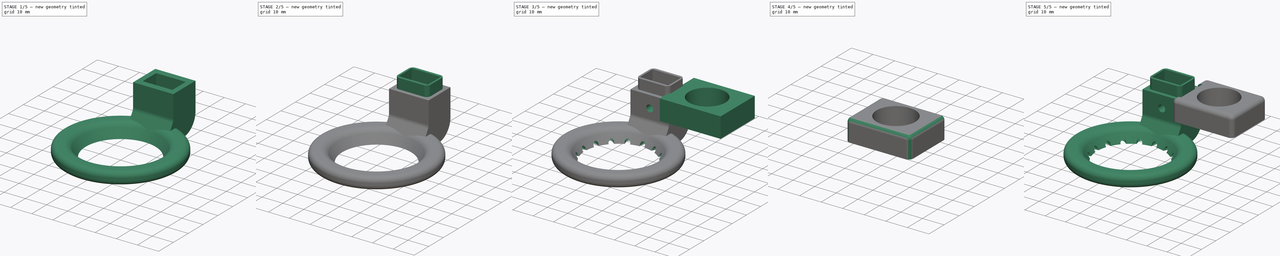
[diagram: build sequence overview — one tinted view per stage of 5, left to right]
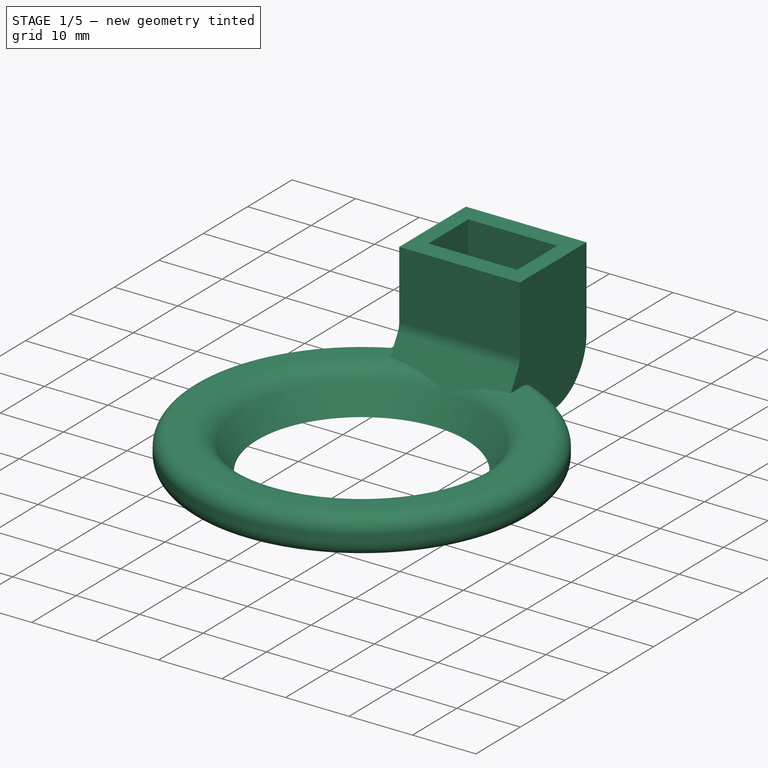
[diagram: stage 1 of 5 — iso view after this stage's code; geometry added in this stage tinted green]
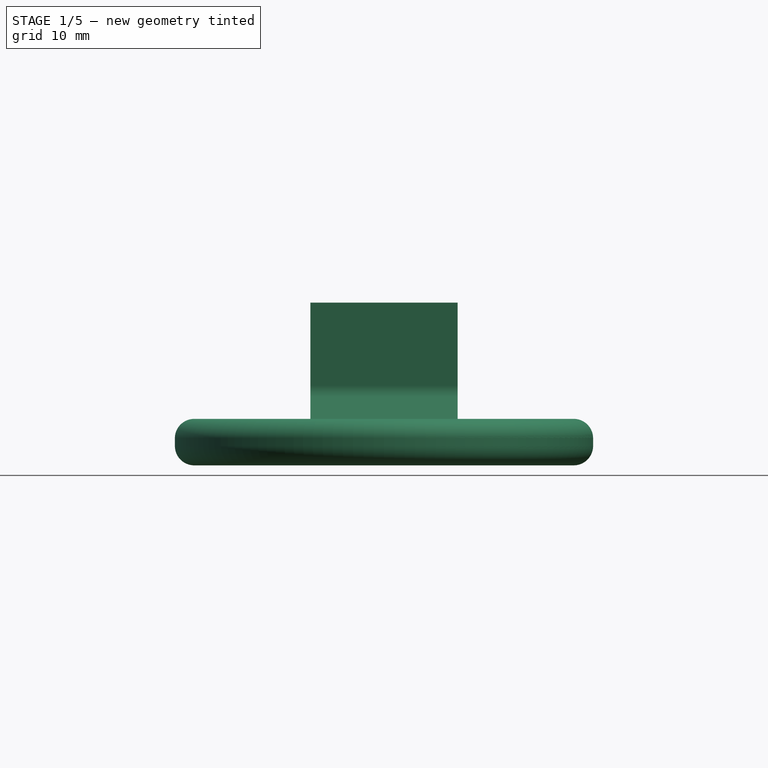
[diagram: stage 1 of 5 — front view after this stage's code; geometry added in this stage tinted green]
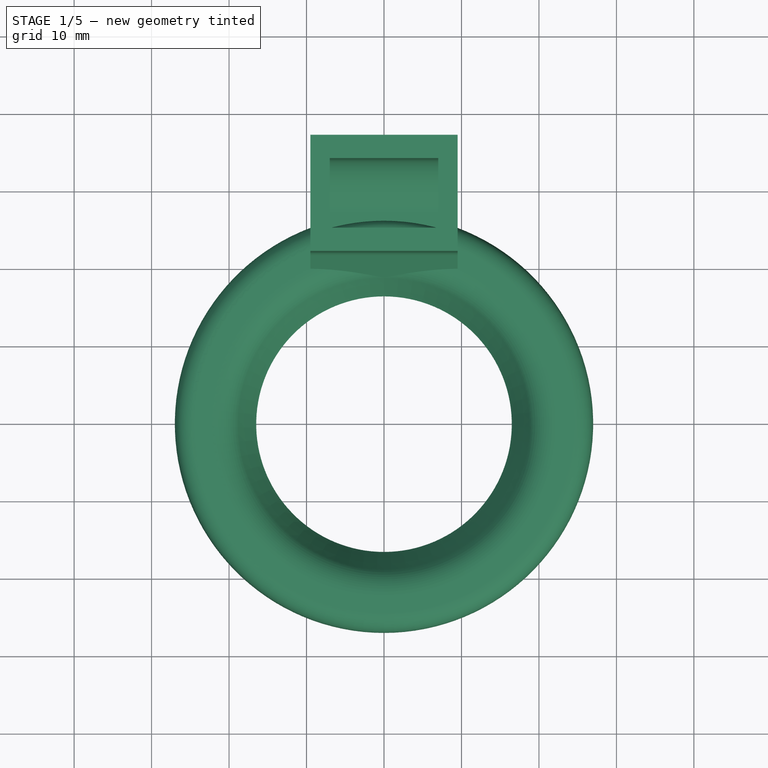
[diagram: stage 1 of 5 — top view after this stage's code; geometry added in this stage tinted green]
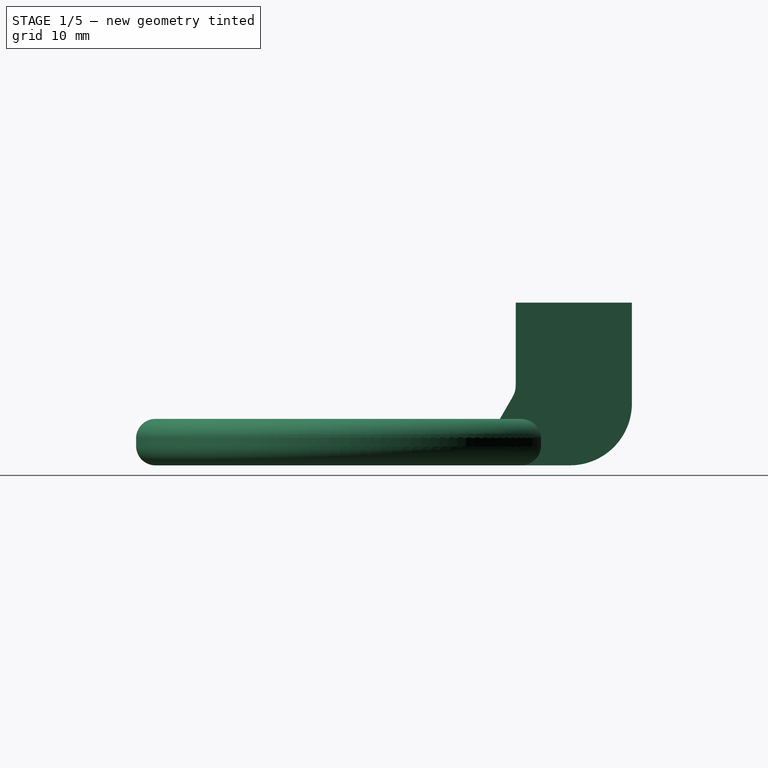
[diagram: stage 1 of 5 — right view after this stage's code; geometry added in this stage tinted green]
FCSTD DOCUMENT  (FreeCAD 0.14R3703 (Git))
Label: Tobera_pro
License: All rights reserved
LicenseURL: http://en.wikipedia.org/wiki/All_rights_reserved
objects: Sketcher::SketchObject×11, PartDesign::Pad×5, Part::Cut×5, PartDesign::Pocket×5, PartDesign::Fillet×5, Part::FeaturePython×2, PartDesign::Revolution×2, Part::MultiFuse×2, Part::Cone×1, Part::Box×1
note: 51 computed .brp shape members not serialized (recipe doc carries the construction recipe); baked Part::Feature solids carry a one-line shape summary decoded from their .brp

FEATURE [Sketcher::SketchObject] Sketch  label="Aussen"
  Placement = pos=(0,0,0) rot=(0.57735,0.57735,0.57735;2.0944rad)
  sketch-geometry (7):
    g0: LineSegment StartX=22 StartY=21 StartZ=0 EndX=22 EndY=10.3301 EndZ=0
    g1: LineSegment StartX=37 StartY=21 StartZ=0 EndX=37 EndY=8 EndZ=0
    g2: LineSegment StartX=22 StartY=21 StartZ=0 EndX=37 EndY=21 EndZ=0
    g3: ArcOfCircle CenterX=29 CenterY=8 CenterZ=0 NormalX=0 NormalY=0 NormalZ=1 Radius=8 StartAngle=4.71239 EndAngle=6.28319
    g4: LineSegment StartX=16.5 StartY=0 StartZ=0 EndX=21.5981 EndY=8.83012 EndZ=0
    g5: ArcOfCircle CenterX=19 CenterY=10.3301 CenterZ=0 NormalX=0 NormalY=0 NormalZ=1 Radius=3 StartAngle=5.75958 EndAngle=6.28318
    g6: LineSegment StartX=29 StartY=5e-12 StartZ=0 EndX=16.5 EndY=0 EndZ=0
  constraints (23):
    c: Vertical(g0)
    c: DistanceY(g-1,g0) = 21
    c: DistanceX(g-1,g0) = 22
    c: Vertical(g1)
    c: Coincident(g2,g0)
    c: Horizontal(g2)
    c: Coincident(g2,g1)
    c: Distance(g2) = 15
    c: Coincident(g3,g1)
    c: Tangent(g3,g1)
    c: Tangent(g3,g-1)
    c: PointOnObject(g3,g-1)
    c: PointOnObject(g4,g-1)
    c: Angle(g4,g-1) = 2.0944
    c: DistanceX(g-1,g4) = 16.5
    c: Coincident(g5,g4)
    c: Coincident(g5,g0)
    c: Tangent(g5,g0)
    c: Tangent(g5,g4)
    c: Radius(g5) = 3
    c: Radius(g3) = 8
    c: Coincident(g6,g3)
    c: Coincident(g6,g4)
FEATURE [PartDesign::Pad] Pad
  Length = 19
  Length2 = 100
  Midplane = true
  Placement = pos=(0,0,0) rot=(0.57735,0.57735,0.57735;2.0944rad)
  Sketch = -> Sketch
  Type = 0
FEATURE [Sketcher::SketchObject] Sketch002  label="Innen"
  Placement = pos=(0,0,0) rot=(0.57735,0.57735,0.57735;2.0944rad)
  sketch-geometry (7):
    g0: LineSegment StartX=20.8 StartY=1 StartZ=0 EndX=27 EndY=1 EndZ=0
    g1: LineSegment StartX=34 StartY=8 StartZ=0 EndX=34 EndY=22 EndZ=0
    g2: LineSegment StartX=25 StartY=22 StartZ=0 EndX=25 EndY=6.99699 EndZ=0
    g3: ArcOfCircle CenterX=27 CenterY=8 CenterZ=0 NormalX=0 NormalY=0 NormalZ=1 Radius=7 StartAngle=4.71239 EndAngle=6.28319
    g4: ArcOfCircle CenterX=23 CenterY=6.99701 CenterZ=0 NormalX=0 NormalY=0 NormalZ=1 Radius=2 StartAngle=4.76711 EndAngle=6.28318
    g5: LineSegment StartX=23.1094 StartY=5 StartZ=0 EndX=20.8 EndY=1 EndZ=0
    g6: LineSegment StartX=34 StartY=22 StartZ=0 EndX=25 EndY=22 EndZ=0
  constraints (23):
    c: Horizontal(g0)
    c: Vertical(g1)
    c: Vertical(g2)
    c: DistanceX(g-1,g2) = 25
    c: DistanceX(g2,g1) = 9
    c: Coincident(g3,g1)
    c: DistanceY(g-1,g0) = 1
    c: Coincident(g3,g0)
    c: Radius(g3) = 7
    c: Coincident(g4,g2)
    c: Tangent(g4,g2)
    c: Radius(g4) = 2
    c: Coincident(g5,g0)
    c: DistanceY(g5,g0) = -4
    c: Distance(g1) = 14
    c: Coincident(g6,g1)
    c: Horizontal(g6)
    c: Coincident(g2,g6)
    c: DistanceX(g0) = 6.2
    c: Tangent(g3,g1)
    c: Tangent(g0,g3)
    c: Angle(g0,g5) = 1.0472
    c: Coincident(g4,g5)
FEATURE [PartDesign::Pad] Pad001
  Length = 14
  Length2 = 100
  Midplane = true
  Placement = pos=(0,0,0) rot=(0.57735,0.57735,0.57735;2.0944rad)
  Sketch = -> Sketch002
  Type = 0
FEATURE [PartDesign::Revolution] Revolution
  Angle = 360
  Axis = (0,0,1)
  Base = (0,0,0)
  Placement = pos=(0,0,0) rot=(0.57735,0.57735,0.57735;2.0944rad)
  ReferenceAxis = -> Sketch004 [V_Axis]
  Reversed = true
  Sketch = -> Sketch004
FEATURE [PartDesign::Revolution] Revolution001
  Angle = 360
  Axis = (0,0,1)
  Base = (0,0,0)
  Placement = pos=(0,0,0) rot=(0.57735,0.57735,0.57735;2.0944rad)
  ReferenceAxis = -> Sketch003 [V_Axis]
  Reversed = true
  Sketch = -> Sketch003
FEATURE [Part::MultiFuse] Fusion
  Shapes = -> [Pad,Revolution]
FEATURE [Part::Cut] Cut
  Base = -> Fusion
  Tool = -> Pad001
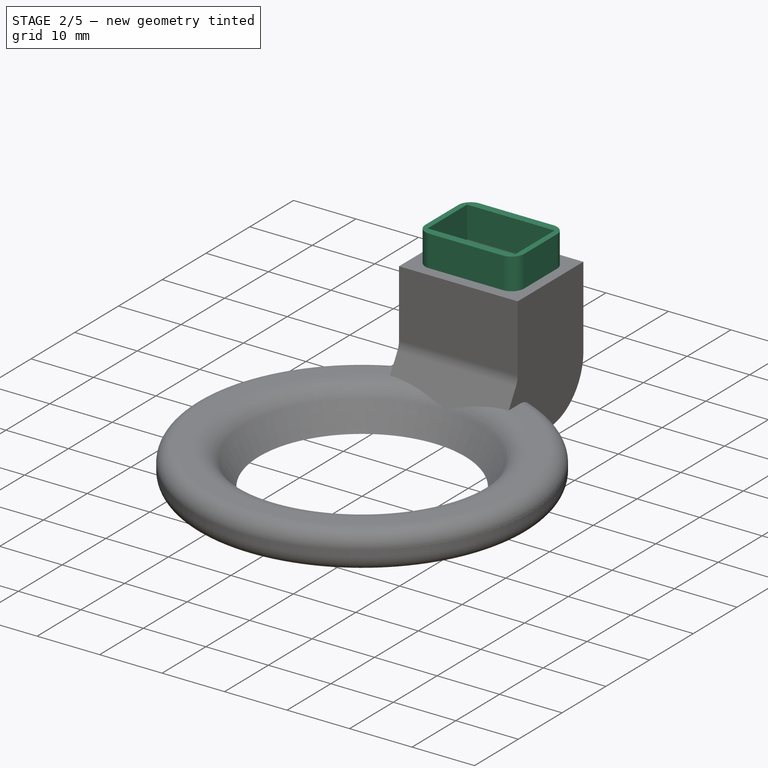
[diagram: stage 2 of 5 — iso view after this stage's code; geometry added in this stage tinted green]
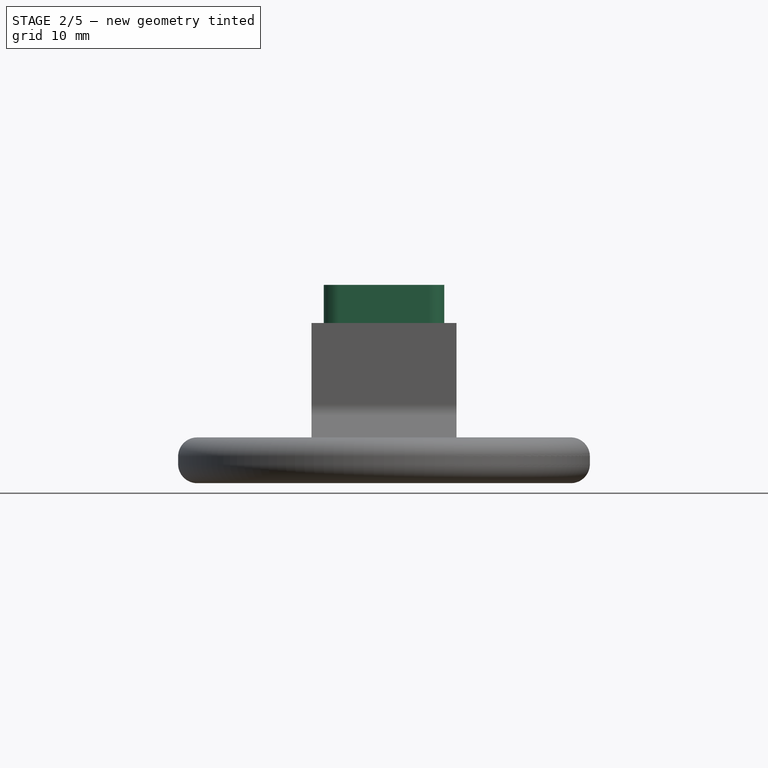
[diagram: stage 2 of 5 — front view after this stage's code; geometry added in this stage tinted green]
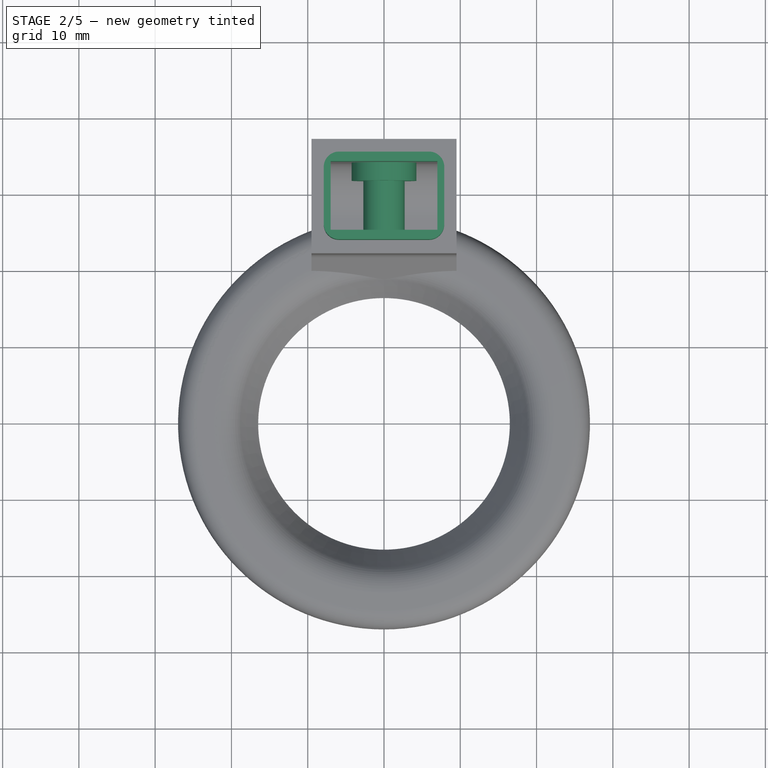
[diagram: stage 2 of 5 — top view after this stage's code; geometry added in this stage tinted green]
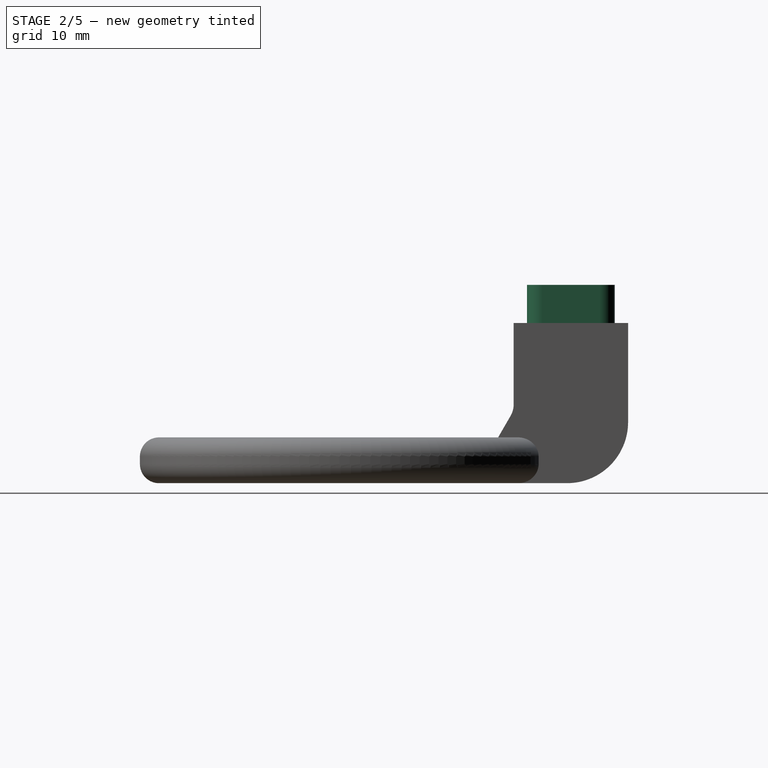
[diagram: stage 2 of 5 — right view after this stage's code; geometry added in this stage tinted green]
FEATURE [Part::Cut] Cut001
  Base = -> Cut
  Tool = -> Revolution001
FEATURE [Sketcher::SketchObject] Sketch012
  Placement = pos=(0,34,0) rot=(1,0,0;1.5708rad)
  Support = -> Cut001 [Face9]
  sketch-geometry (1):
    g0: Circle CenterX=0 CenterY=15 CenterZ=0 NormalX=0 NormalY=0 NormalZ=1 Radius=4.25
  constraints (3):
    c: PointOnObject(g0,g-2)
    c: Radius(g0) = 4.25
    c: DistanceY(g-1,g0) = 15
FEATURE [PartDesign::Pad] Pad003
  Length = 2.4
  Length2 = 100
  Sketch = -> Sketch012
  Type = 0
FEATURE [Sketcher::SketchObject] Sketch009
  Placement = pos=(0,0,21) rot=(0,0,1;0rad)
  Support = -> Pad003 [Face6]
  sketch-geometry (13):
    g0: LineSegment StartX=-7.9 StartY=25.75 StartZ=0 EndX=-7.9 EndY=33.25 EndZ=0
    g1: LineSegment StartX=-5.9 StartY=23.75 StartZ=0 EndX=5.9 EndY=23.75 EndZ=0
    g2: LineSegment StartX=-5.9 StartY=35.25 StartZ=0 EndX=5.9 EndY=35.25 EndZ=0
    g3: LineSegment StartX=-7 StartY=34 StartZ=0 EndX=7 EndY=34 EndZ=0
    g4: LineSegment StartX=7 StartY=34 StartZ=0 EndX=7 EndY=25 EndZ=0
    g5: LineSegment StartX=7 StartY=25 StartZ=0 EndX=-7 EndY=25 EndZ=0
    g6: LineSegment StartX=-7 StartY=25 StartZ=0 EndX=-7 EndY=34 EndZ=0
    g7: ArcOfCircle CenterX=-5.9 CenterY=33.25 CenterZ=0 NormalX=0 NormalY=0 NormalZ=1 Radius=2 StartAngle=1.5708 EndAngle=3.14159
    g8: ArcOfCircle CenterX=5.9 CenterY=33.25 CenterZ=0 NormalX=0 NormalY=0 NormalZ=1 Radius=2 StartAngle=6.28319 EndAngle=7.85398
    g9: ArcOfCircle CenterX=-5.9 CenterY=25.75 CenterZ=0 NormalX=0 NormalY=0 NormalZ=1 Radius=2 StartAngle=3.14159 EndAngle=4.71239
    g10: GeomPoint [constr] X=7.9 Y=33.25 Z=0
    g11: LineSegment StartX=7.9 StartY=33.25 StartZ=0 EndX=7.9 EndY=25.75 EndZ=0
    g12: ArcOfCircle CenterX=5.9 CenterY=25.75 CenterZ=0 NormalX=0 NormalY=0 NormalZ=1 Radius=2 StartAngle=4.71239 EndAngle=6.28319
  constraints (41):
    c: Vertical(g0)
    c: Horizontal(g1)
    c: Horizontal(g2)
    c: Coincident(g3,g4)
    c: Coincident(g4,g5)
    c: Coincident(g5,g6)
    c: Coincident(g6,g3)
    c: Horizontal(g3)
    c: Horizontal(g5)
    c: Vertical(g4)
    c: Vertical(g6)
    c: Coincident(g7,g2)
    c: Coincident(g7,g0)
    c: Tangent(g7,g0)
    c: Tangent(g7,g2)
    c: Radius(g7) = 2
    c: Coincident(g8,g2)
    c: Tangent(g8,g2)
    c: Equal(g8,g7)
    c: Coincident(g9,g0)
    c: Coincident(g9,g1)
    c: Tangent(g9,g1)
    c: Tangent(g9,g0)
    c: Radius(g9) = 2
    c: Coincident(g10,g8)
    c: Coincident(g11,g8)
    c: Vertical(g11)
    c: Coincident(g12,g1)
    c: Coincident(g12,g11)
    c: Tangent(g12,g11)
    c: Tangent(g12,g1)
    c: Equal(g12,g8)
    c: DistanceY(g-1,g1) = 23.75
    c: DistanceY(g1,g5) = 1.25
    c: DistanceY(g3,g2) = 1.25
    c: Tangent(g8,g11)
    c: DistanceX(g4,g5) = -14
    c: DistanceY(g4,g3) = 9
    c: DistanceX(g0,g3) = 0.9
    c: DistanceX(g3,g8) = 0.9
    c: Symmetric(g0,g8,g-2)
FEATURE [PartDesign::Pad] Pad004
  Length = 5
  Length2 = 100
  Sketch = -> Sketch009
  Type = 0
FEATURE [Sketcher::SketchObject] Sketch013
  Placement = pos=(0,31.6,0) rot=(1,0,0;1.5708rad)
  Support = -> Pad004 [Face1]
  sketch-geometry (1):
    g0: Circle CenterX=0 CenterY=15 CenterZ=0 NormalX=0 NormalY=0 NormalZ=1 Radius=2.7
  constraints (3):
    c: PointOnObject(g0,g-2)
    c: Radius(g0) = 2.7
    c: DistanceY(g-1,g0) = 15
FEATURE [PartDesign::Pad] Pad005
  Length = 10
  Length2 = 100
  Sketch = -> Sketch013
  Type = 2
FEATURE [Sketcher::SketchObject] Sketch014
  Placement = pos=(0,37,0) rot=(0,0.707107,0.707107;3.14159rad)
  Support = -> Pad005 [Face37]
  sketch-geometry (1):
    g0: Circle CenterX=0 CenterY=15 CenterZ=0 NormalX=0 NormalY=0 NormalZ=1 Radius=3.25
  constraints (3):
    c: PointOnObject(g0,g-2)
    c: Radius(g0) = 3.25
    c: DistanceY(g-1,g0) = 15
FEATURE [PartDesign::Pocket] Pocket
  Length = 3.4
  Sketch = -> Sketch014
  Type = 0
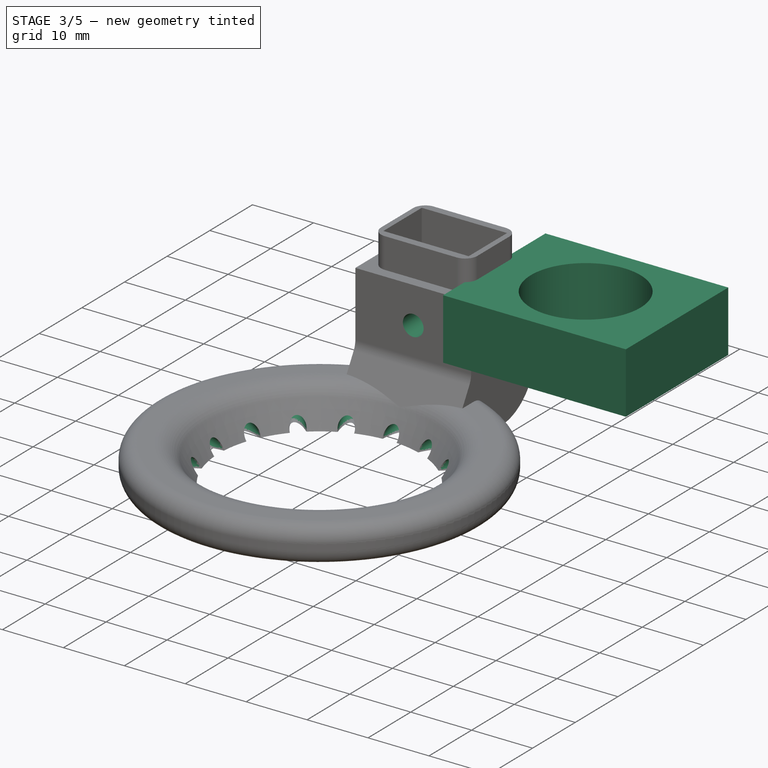
[diagram: stage 3 of 5 — iso view after this stage's code; geometry added in this stage tinted green]
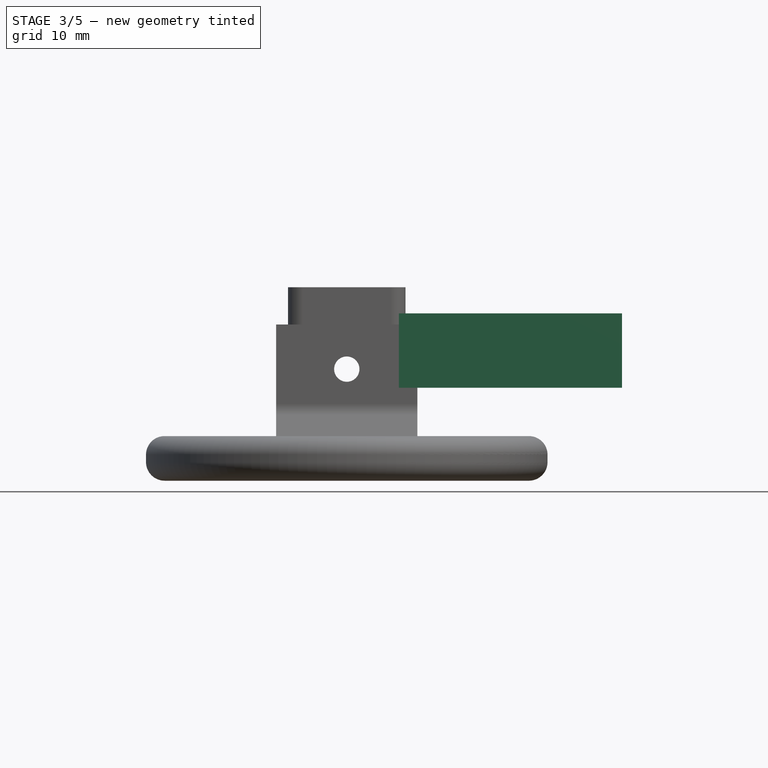
[diagram: stage 3 of 5 — front view after this stage's code; geometry added in this stage tinted green]
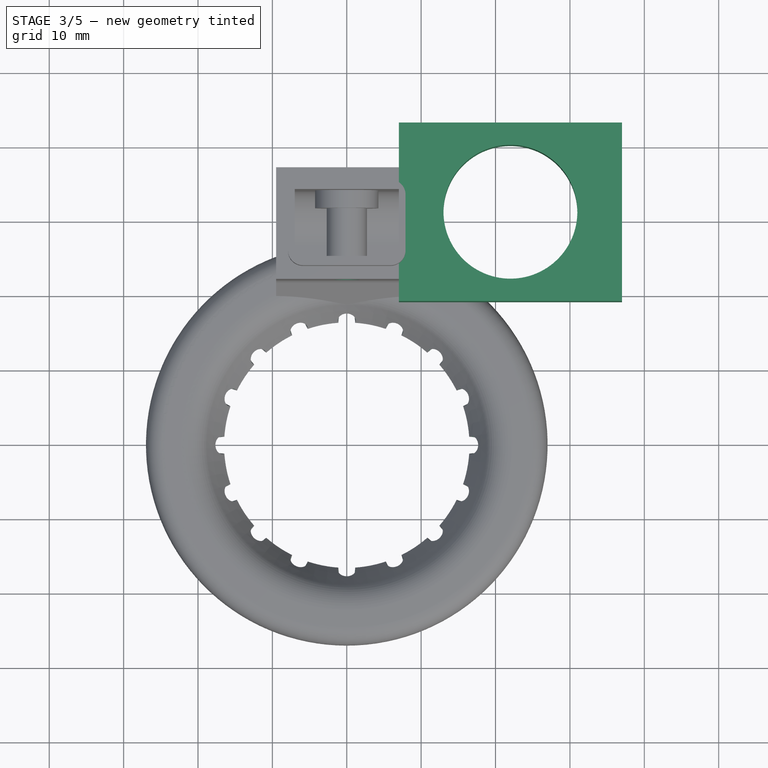
[diagram: stage 3 of 5 — top view after this stage's code; geometry added in this stage tinted green]
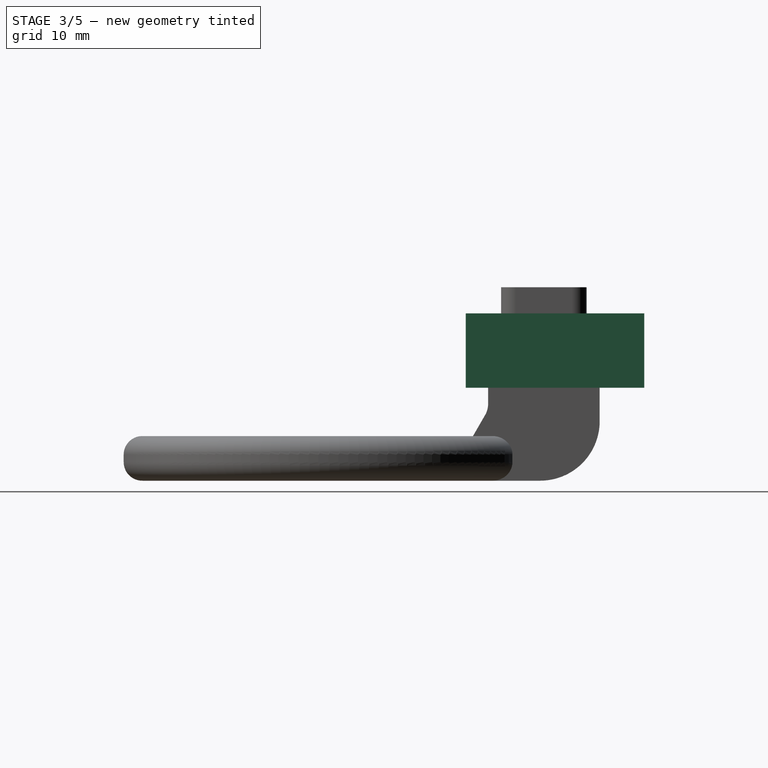
[diagram: stage 3 of 5 — right view after this stage's code; geometry added in this stage tinted green]
FEATURE [Sketcher::SketchObject] Sketch003  label="RingInnen"
  Placement = pos=(0,0,0) rot=(0.57735,0.57735,0.57735;2.0944rad)
  sketch-geometry (7):
    g0: LineSegment StartX=20 StartY=1 StartZ=0 EndX=24.7 EndY=1 EndZ=0
    g1: LineSegment StartX=21.8764 StartY=4.25 StartZ=0 EndX=20 EndY=1 EndZ=0
    g2: LineSegment StartX=23.1754 StartY=5 StartZ=0 EndX=24.7 EndY=5 EndZ=0
    g3: ArcOfCircle CenterX=24.7 CenterY=3.5 CenterZ=0 NormalX=0 NormalY=0 NormalZ=1 Radius=1.5 StartAngle=-3.02e-10 EndAngle=1.5708
    g4: ArcOfCircle CenterX=23.1754 CenterY=3.5 CenterZ=0 NormalX=0 NormalY=0 NormalZ=1 Radius=1.5 StartAngle=1.5708 EndAngle=2.61799
    g5: LineSegment StartX=26.2 StartY=3.5 StartZ=0 EndX=26.2 EndY=2.5 EndZ=0
    g6: ArcOfCircle CenterX=24.7 CenterY=2.5 CenterZ=0 NormalX=0 NormalY=0 NormalZ=1 Radius=1.5 StartAngle=4.71239 EndAngle=6.28319
  constraints (23):
    c: Horizontal(g0)
    c: DistanceY(g-1,g0) = 1
    c: Coincident(g1,g0)
    c: Angle(g0,g1) = 1.0472
    c: DistanceX(g-1,g0) = 20
    c: Horizontal(g2)
    c: Coincident(g3,g2)
    c: Tangent(g3,g2)
    c: Radius(g3) = 1.5
    c: DistanceY(g2,g0) = -4
    c: Coincident(g4,g2)
    c: Coincident(g4,g1)
    c: Tangent(g1,g4)
    c: Tangent(g4,g2)
    c: Radius(g4) = 1.5
    c: DistanceX(g0,g3) = 6.2
    c: Coincident(g5,g3)
    c: Vertical(g5)
    c: Coincident(g6,g0)
    c: Coincident(g6,g5)
    c: Tangent(g6,g5)
    c: Tangent(g6,g0)
    c: Radius(g6) = 1.5
FEATURE [Sketcher::SketchObject] Sketch004  label="RingAussen"
  Placement = pos=(0,0,0) rot=(0.57735,0.57735,0.57735;2.0944rad)
  sketch-geometry (7):
    g0: LineSegment StartX=16.4957 StartY=0 StartZ=0 EndX=24.4957 EndY=0 EndZ=0
    g1: LineSegment StartX=18.8051 StartY=4.00002 StartZ=0 EndX=16.4957 EndY=0 EndZ=0
    g2: LineSegment StartX=24.4957 StartY=6 StartZ=0 EndX=22.2692 EndY=6 EndZ=0
    g3: ArcOfCircle CenterX=22.2692 CenterY=2 CenterZ=0 NormalX=0 NormalY=0 NormalZ=1 Radius=4 StartAngle=1.5708 EndAngle=2.61799
    g4: ArcOfCircle CenterX=24.4957 CenterY=3.5 CenterZ=0 NormalX=0 NormalY=0 NormalZ=1 Radius=2.5 StartAngle=6.28318 EndAngle=7.85398
    g5: LineSegment StartX=26.9957 StartY=3.5 StartZ=0 EndX=26.9957 EndY=2.5 EndZ=0
    g6: ArcOfCircle CenterX=24.4957 CenterY=2.5 CenterZ=0 NormalX=0 NormalY=0 NormalZ=1 Radius=2.5 StartAngle=4.71239 EndAngle=6.28319
  constraints (24):
    c: Horizontal(g0)
    c: DistanceY(g-1,g0) = 0
    c: Coincident(g1,g0)
    c: Angle(g0,g1) = 1.0472
    c: DistanceX(g-1,g0) = 16.4957
    c: Horizontal(g2)
    c: DistanceY(g2,g0) = -6
    c: Coincident(g3,g2)
    c: Coincident(g3,g1)
    c: Tangent(g1,g3)
    c: Tangent(g2,g3)
    c: Radius(g3) = 4
    c: Coincident(g4,g2)
    c: Tangent(g4,g2)
    c: Radius(g4) = 2.5
    c: Coincident(g5,g4)
    c: Vertical(g5)
    c: DistanceX(g0,g5) = 10.5
    c: Coincident(g6,g0)
    c: Coincident(g6,g5)
    c: Tangent(g6,g5)
    c: Tangent(g6,g0)
    c: Radius(g6) = 2.5
    c: Tangent(g4,g5)
FEATURE [Part::Cone] Cone
  Angle = 360
  Height = 7
  Placement = pos=(0,16,0.3) rot=(-1,0,0;1.309rad)
  Radius1 = 1.2
  Radius2 = 1.3
FEATURE [Part::Box] Box  label="Cubo"
  Height = 10
  Length = 30
  Placement = pos=(7,19,12.5) rot=(0,0,1;0rad)
  Width = 24
FEATURE [Sketcher::SketchObject] Sketch016
  ExternalGeometry = -> [Box]
  Placement = pos=(7,19,22.5) rot=(0,0,1;0rad)
  Support = -> Box [Face6]
  sketch-geometry (5):
    g0: LineSegment [constr] StartX=0 StartY=12 StartZ=0 EndX=15 EndY=12 EndZ=0
    g1: LineSegment [constr] StartX=15 StartY=12 StartZ=0 EndX=15 EndY=0 EndZ=0
    g2: LineSegment [constr] StartX=15 StartY=0 StartZ=0 EndX=0 EndY=0 EndZ=0
    g3: LineSegment [constr] StartX=0 StartY=0 StartZ=0 EndX=0 EndY=12 EndZ=0
    g4: Circle CenterX=15 CenterY=12 CenterZ=0 NormalX=0 NormalY=0 NormalZ=1 Radius=9
  constraints (13):
    c: Coincident(g0,g1)
    c: Coincident(g1,g2)
    c: Coincident(g2,g3)
    c: Coincident(g3,g0)
    c: Horizontal(g0)
    c: Horizontal(g2)
    c: Vertical(g1)
    c: Vertical(g3)
    c: Coincident(g2,g-1)
    c: DistanceY(g1) = -12
    c: DistanceX(g0) = 15
    c: Radius(g4) = 9
    c: Coincident(g4,g0)
FEATURE [PartDesign::Pocket] Pocket002
  Length = 10
  Placement = pos=(7,19,12.5) rot=(0,0,1;0rad)
  Sketch = -> Sketch016
  Type = 0
FEATURE [Part::FeaturePython] Array001  # Draft array (typed FeaturePython)
  Angle = 360
  ArrayType = 1
  Axis = (0,0,1)
  Base = -> Cone
  Center = (0,0,0)
  Fuse = false
  IntervalAxis = (0,0,0)
  IntervalX = (1,0,0)
  IntervalY = (0,1,0)
  IntervalZ = (0,0,0)
  NumberPolar = 16
  NumberX = 2
  NumberY = 2
  NumberZ = 1
FEATURE [PartDesign::Pocket] Pocket003
  Length = 5
  Sketch = -> Sketch015
  Type = 1
FEATURE [Part::Cut] Cut003  label="Aux-Tobera"
  Base = -> Pocket003
  Tool = -> Array001
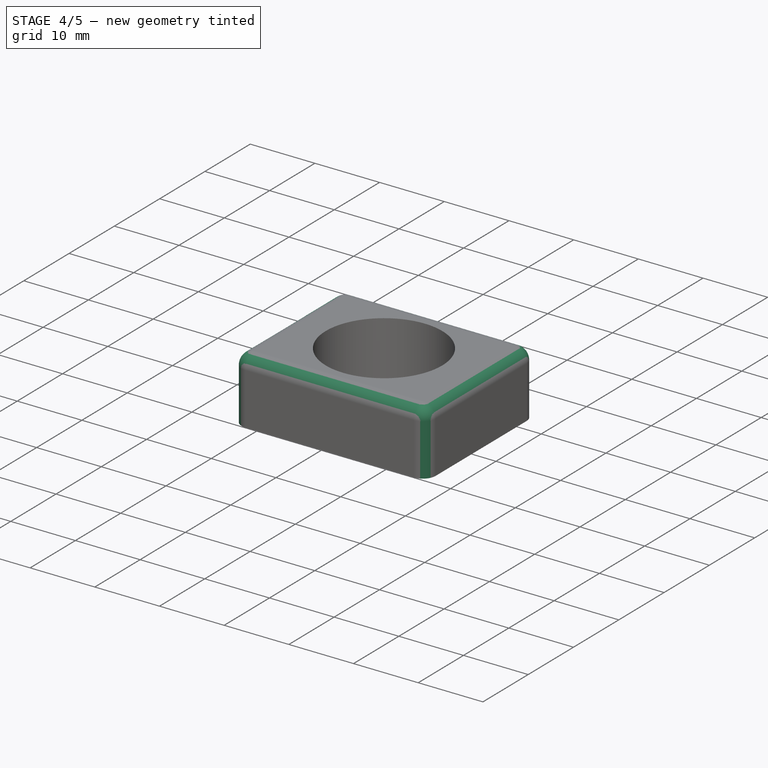
[diagram: stage 4 of 5 — iso view after this stage's code; geometry added in this stage tinted green]
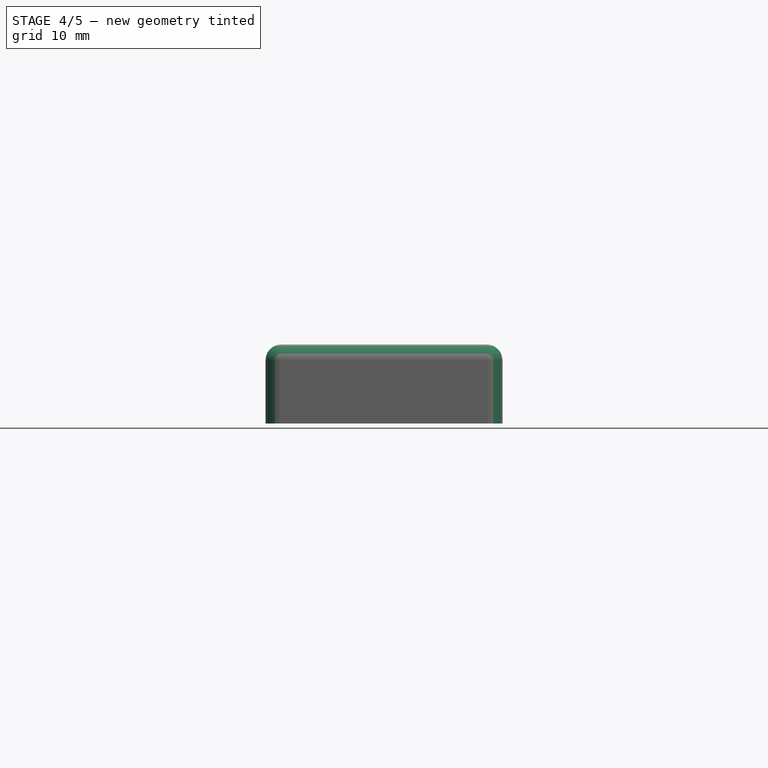
[diagram: stage 4 of 5 — front view after this stage's code; geometry added in this stage tinted green]
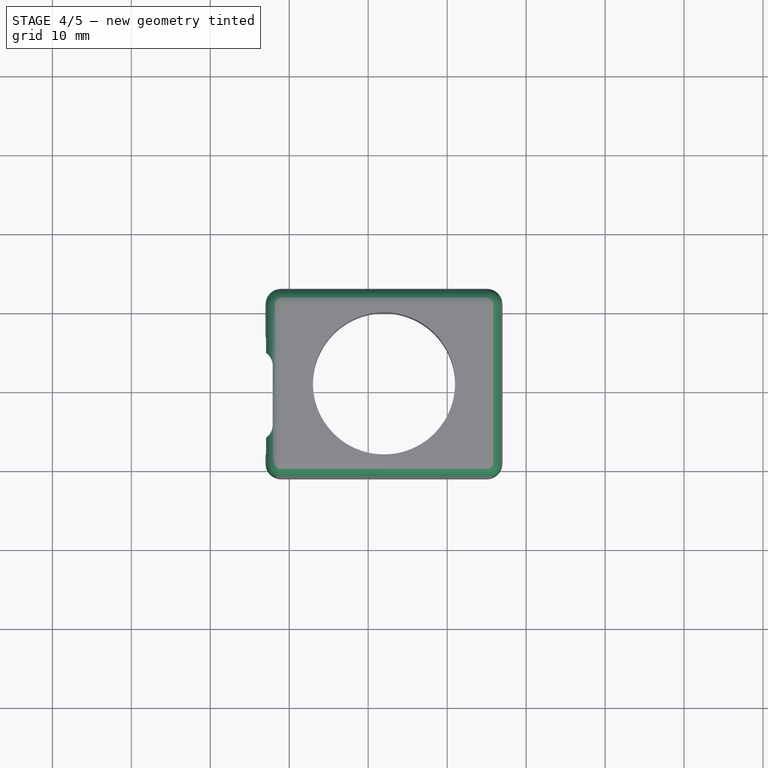
[diagram: stage 4 of 5 — top view after this stage's code; geometry added in this stage tinted green]
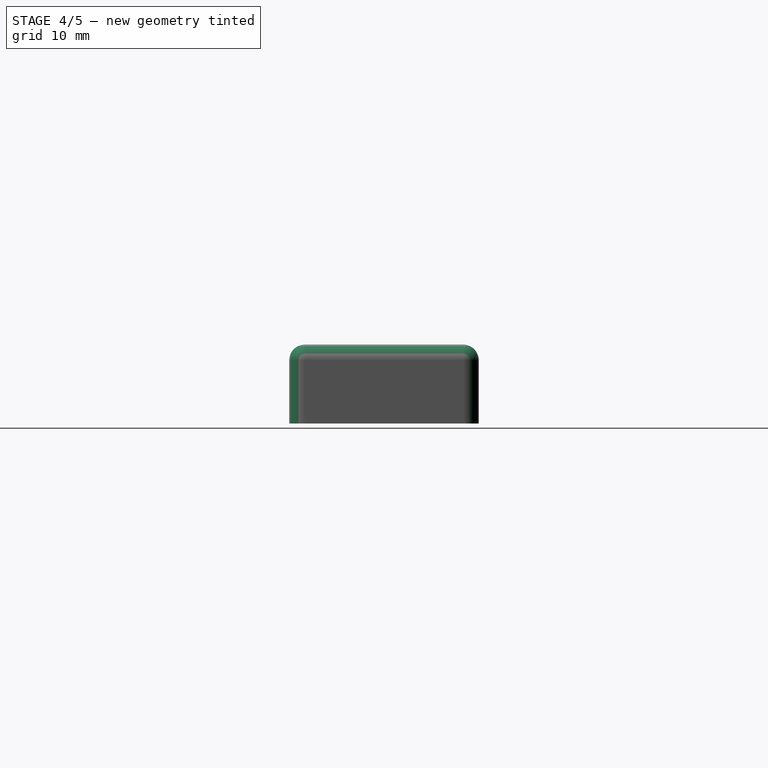
[diagram: stage 4 of 5 — right view after this stage's code; geometry added in this stage tinted green]
FEATURE [PartDesign::Fillet] Fillet
  Base = -> Pocket002 [Edge7]
  Placement = pos=(7,19,12.5) rot=(0,0,1;0rad)
  Radius = 2
FEATURE [PartDesign::Fillet] Fillet001
  Base = -> Fillet [Edge14]
  Placement = pos=(7,19,12.5) rot=(0,0,1;0rad)
  Radius = 2
FEATURE [PartDesign::Fillet] Fillet002
  Base = -> Fillet001 [Edge17]
  Placement = pos=(7,19,12.5) rot=(0,0,1;0rad)
  Radius = 2
FEATURE [PartDesign::Fillet] Fillet003  label="Soporte"
  Base = -> Fillet002 [Edge14]
  Placement = pos=(7,19,12.5) rot=(0,0,1;0rad)
  Radius = 2
FEATURE [Part::Cut] Cut004  label="New-Soporte"
  Base = -> Fillet003
  Tool = -> Cut003
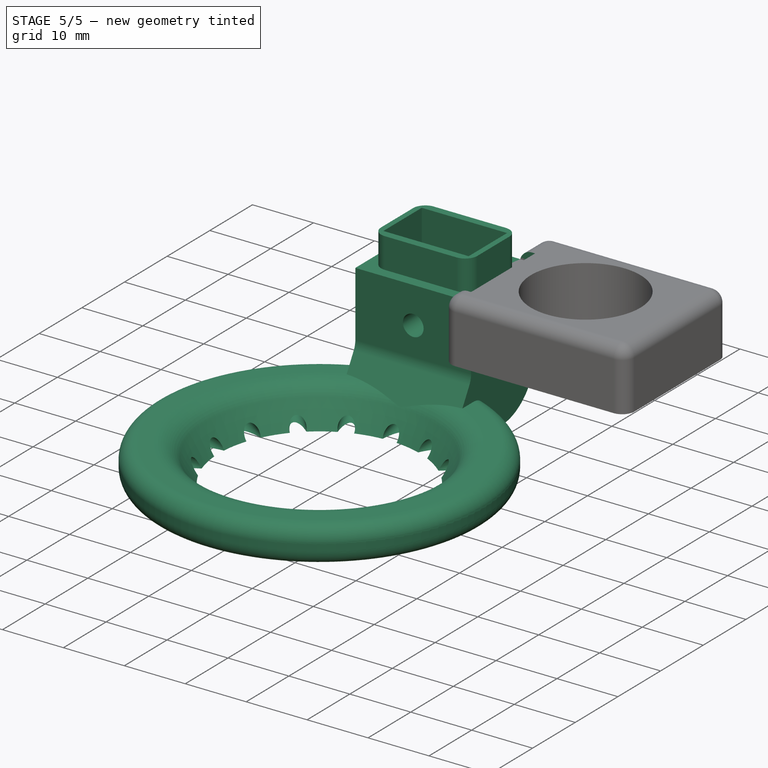
[diagram: stage 5 of 5 — iso view after this stage's code; geometry added in this stage tinted green]
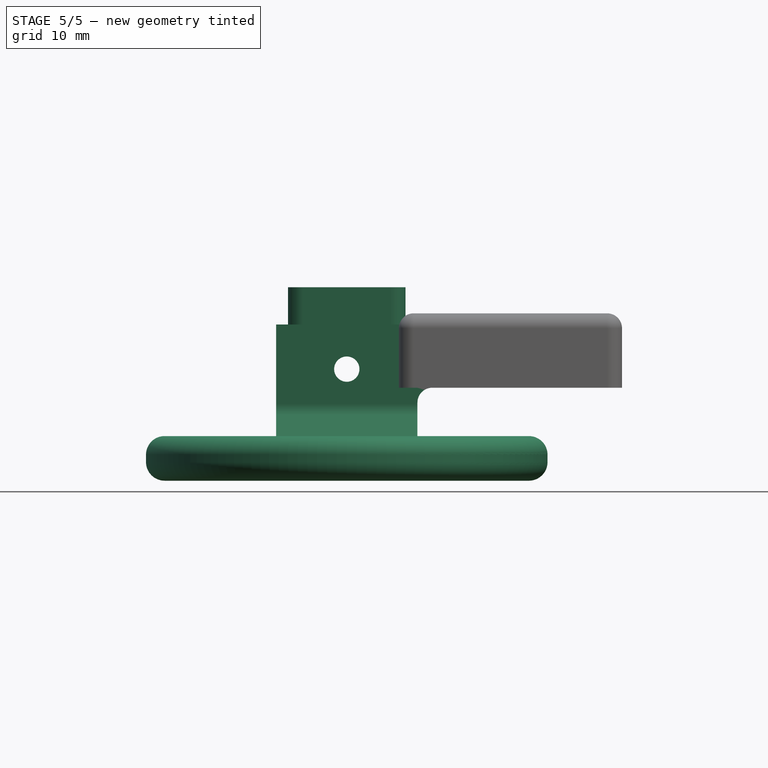
[diagram: stage 5 of 5 — front view after this stage's code; geometry added in this stage tinted green]
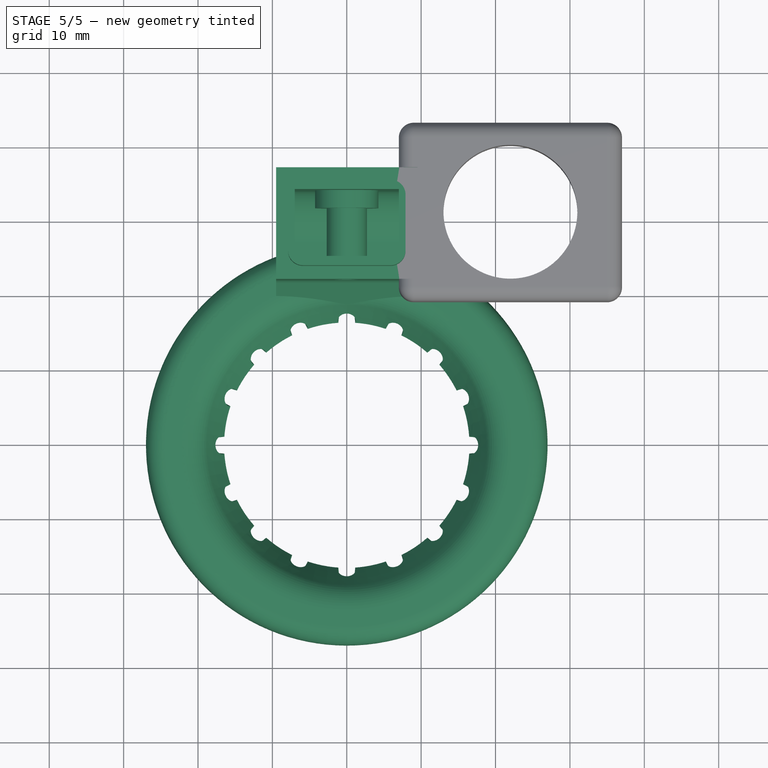
[diagram: stage 5 of 5 — top view after this stage's code; geometry added in this stage tinted green]
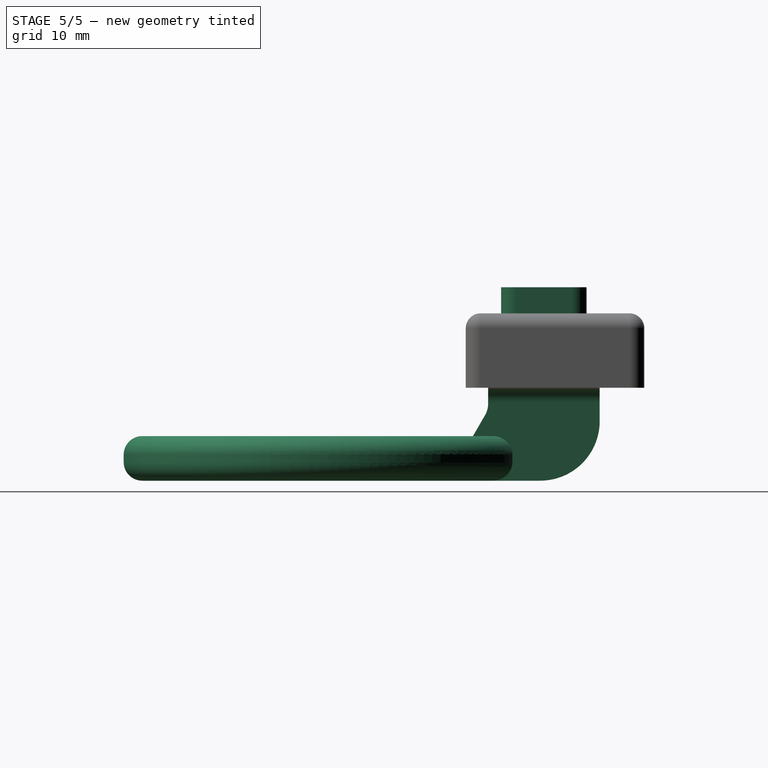
[diagram: stage 5 of 5 — right view after this stage's code; geometry added in this stage tinted green]
FEATURE [Part::FeaturePython] Array  # Draft array (typed FeaturePython)
  Angle = 360
  ArrayType = 1
  Axis = (0,0,1)
  Base = -> Cone
  Center = (0,0,0)
  Fuse = false
  IntervalAxis = (0,0,0)
  IntervalX = (1,0,0)
  IntervalY = (0,1,0)
  IntervalZ = (0,0,0)
  NumberPolar = 16
  NumberX = 2
  NumberY = 2
  NumberZ = 1
FEATURE [Sketcher::SketchObject] Sketch015
  Placement = pos=(0,33.6,0) rot=(0,0.707107,0.707107;3.14159rad)
  Support = -> Pocket [Face51]
  sketch-geometry (1):
    g0: Circle CenterX=0 CenterY=15 CenterZ=0 NormalX=0 NormalY=0 NormalZ=1 Radius=1.7
  constraints (3):
    c: PointOnObject(g0,g-2)
    c: Radius(g0) = 1.7
    c: DistanceY(g-1,g0) = 15
FEATURE [PartDesign::Pocket] Pocket001
  Length = 5
  Sketch = -> Sketch015
  Type = 1
FEATURE [Part::Cut] Cut002  label="Tobera"
  Base = -> Pocket001
  Tool = -> Array
FEATURE [Sketcher::SketchObject] Sketch017
  ExternalGeometry = -> [Cut004]
  Placement = pos=(0,0,21) rot=(1,0,0;3.14159rad)
  Support = -> Cut004 [Face12]
  sketch-geometry (4):
    g0: LineSegment StartX=9.5 StartY=-37 StartZ=0 EndX=7.06351 EndY=-37 EndZ=0
    g1: LineSegment StartX=7.06351 StartY=-37 StartZ=0 EndX=7.06351 EndY=-22 EndZ=0
    g2: LineSegment StartX=7.06351 StartY=-22 StartZ=0 EndX=9.5 EndY=-22 EndZ=0
    g3: LineSegment StartX=9.5 StartY=-22 StartZ=0 EndX=9.5 EndY=-37 EndZ=0
  constraints (11):
    c: Coincident(g0,g1)
    c: Coincident(g1,g2)
    c: Coincident(g2,g3)
    c: Coincident(g3,g0)
    c: Horizontal(g0)
    c: Horizontal(g2)
    c: Vertical(g1)
    c: Vertical(g3)
    c: Coincident(g0,g-5)
    c: Equal(g2,g-4)
    c: Equal(g1,g-3)
FEATURE [PartDesign::Pocket] Pocket004
  Length = 5
  Sketch = -> Sketch017
  Type = 0
FEATURE [Part::MultiFuse] Fusion001
  Shapes = -> [Pocket004,Cut002]
FEATURE [PartDesign::Fillet] Fillet004
  Base = -> Fusion001 [Edge94]
  Radius = 2
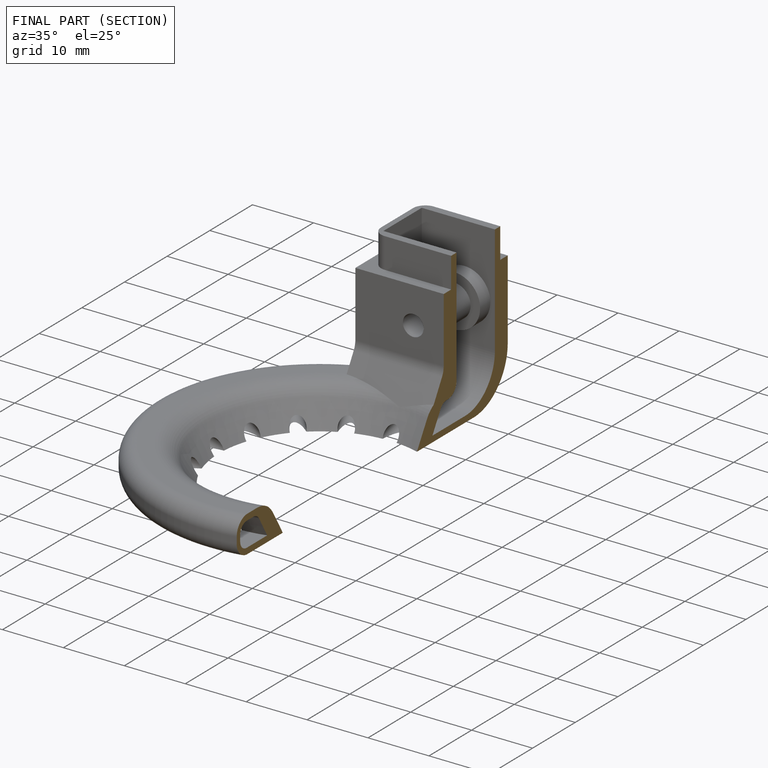
[diagram: finished part — half-section view (interior)]
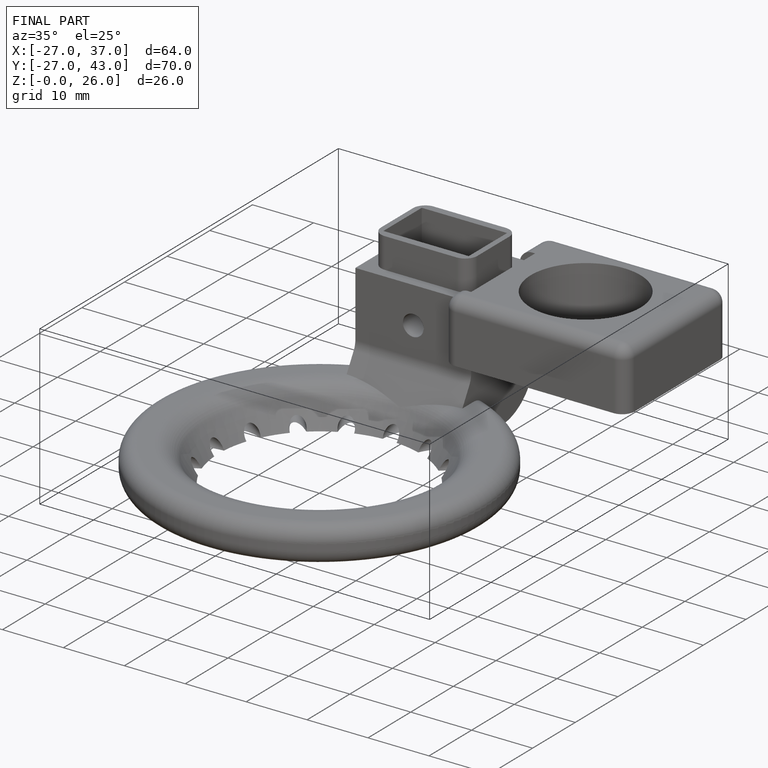
[diagram: finished part — iso view with bounding-box wireframe]
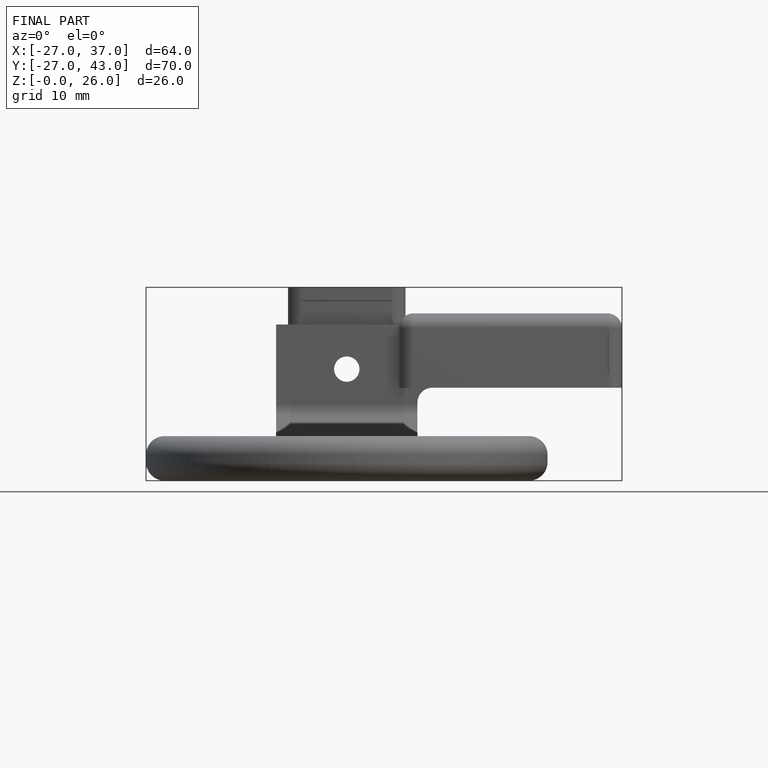
[diagram: finished part — front view with bounding-box wireframe]
